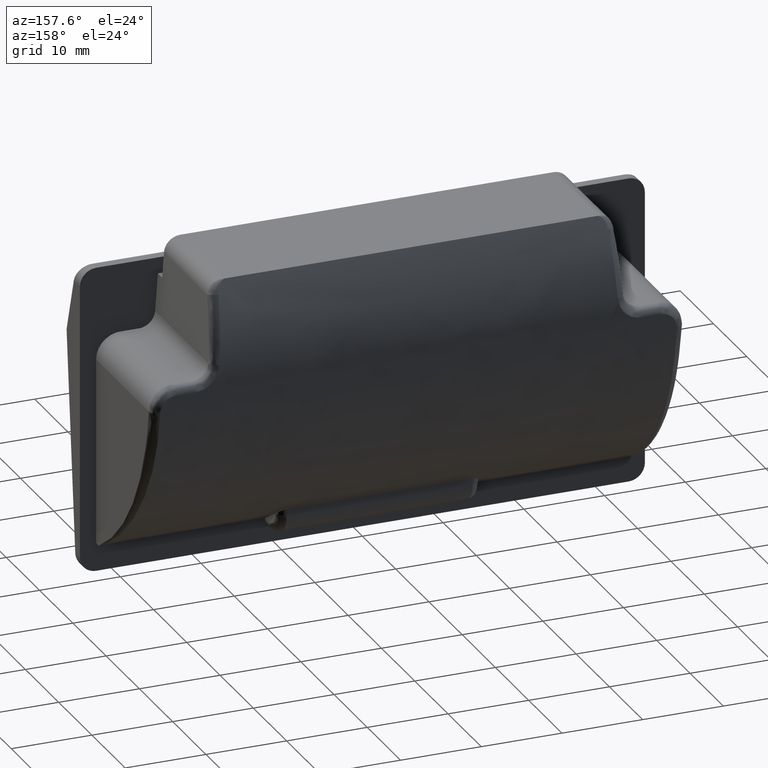
[diagram: clean part render]
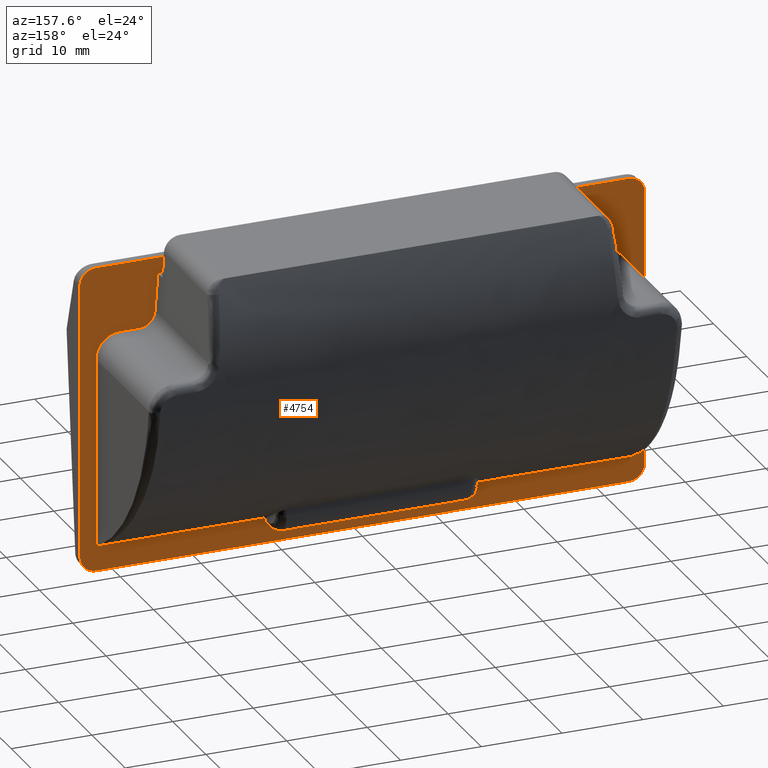
[diagram: same view with one face highlighted and labeled with its STEP entity id]
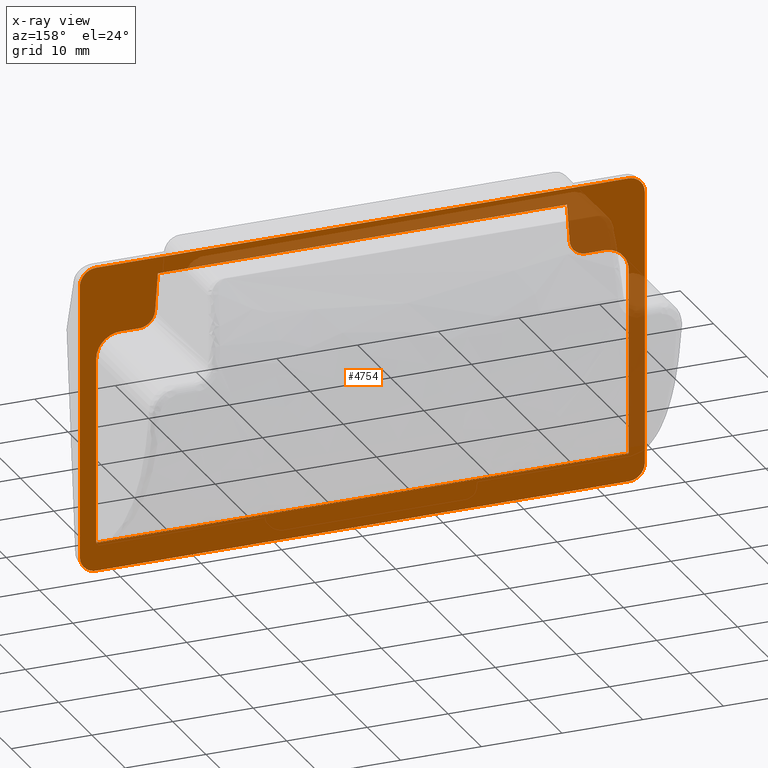
[diagram: x-ray of the same camera — body ghosted, the highlighted face saturated]
A machine part, auxiliary view. The second image highlights one B-rep face of the part: STEP entity #4754.
The next image is the same camera in x-ray: the body ghosted, the highlighted face saturated — about 23% of this face is hidden behind the body in this view.
In plain terms, the highlighted face is a freeform B-spline surface patch.
Its self-contained STEP definition (entity closure, byte-faithful):
#1569=CARTESIAN_POINT('',(33.0,0.0,-19.750000000000000));
#1570=VERTEX_POINT('',#1569);
#1571=CARTESIAN_POINT('',(-33.0,0.0,-19.750000000000000));
#1572=VERTEX_POINT('',#1571);
#1573=CARTESIAN_POINT('',(33.0,0.0,-19.750000000000000));
#1574=CARTESIAN_POINT('',(-33.0,0.0,-19.750000000000000));
#1575=QUASI_UNIFORM_CURVE('',1,(#1573,#1574),.UNSPECIFIED.,.F.,.U.);
#1576=EDGE_CURVE('',#1570,#1572,#1575,.T.);
#4157=CARTESIAN_POINT('',(33.0,0.0,18.250000000000000));
#4158=VERTEX_POINT('',#4157);
#4159=CARTESIAN_POINT('',(35.0,0.0,16.250000000000000));
#4160=VERTEX_POINT('',#4159);
#4161=CARTESIAN_POINT('',(33.0,0.0,18.250000000000000));
#4162=CARTESIAN_POINT('',(34.999999999999993,0.0,18.250000000000011));
#4163=CARTESIAN_POINT('',(35.0,0.0,16.250000000000000));
#4171=(BOUNDED_CURVE()B_SPLINE_CURVE(2,(#4161,#4162,#4163),.UNSPECIFIED.,.F.,.U.)CURVE()GEOMETRIC_REPRESENTATION_ITEM()QUASI_UNIFORM_CURVE()RATIONAL_B_SPLINE_CURVE((1.0,0.707106781186548,1.0))REPRESENTATION_ITEM(''));
#4172=EDGE_CURVE('',#4158,#4160,#4171,.T.);
#4218=CARTESIAN_POINT('',(-35.0,0.0,16.250000000000000));
#4219=VERTEX_POINT('',#4218);
#4220=CARTESIAN_POINT('',(-33.0,0.0,18.250000000000000));
#4221=VERTEX_POINT('',#4220);
#4222=CARTESIAN_POINT('',(-35.0,0.0,16.250000000000000));
#4223=CARTESIAN_POINT('',(-34.999999999999993,0.0,18.250000000000011));
#4224=CARTESIAN_POINT('',(-33.0,0.0,18.250000000000000));
#4232=(BOUNDED_CURVE()B_SPLINE_CURVE(2,(#4222,#4223,#4224),.UNSPECIFIED.,.F.,.U.)CURVE()GEOMETRIC_REPRESENTATION_ITEM()QUASI_UNIFORM_CURVE()RATIONAL_B_SPLINE_CURVE((1.0,0.707106781186548,1.0))REPRESENTATION_ITEM(''));
#4233=EDGE_CURVE('',#4219,#4221,#4232,.T.);
#4280=CARTESIAN_POINT('',(-35.0,0.0,-17.750000000000000));
#4281=VERTEX_POINT('',#4280);
#4287=CARTESIAN_POINT('',(-33.0,0.0,-19.750000000000000));
#4288=CARTESIAN_POINT('',(-34.999999999999993,0.0,-19.749999999999993));
#4289=CARTESIAN_POINT('',(-35.0,0.0,-17.750000000000000));
#4297=(BOUNDED_CURVE()B_SPLINE_CURVE(2,(#4287,#4288,#4289),.UNSPECIFIED.,.F.,.U.)CURVE()GEOMETRIC_REPRESENTATION_ITEM()QUASI_UNIFORM_CURVE()RATIONAL_B_SPLINE_CURVE((1.0,0.707106781186548,1.0))REPRESENTATION_ITEM(''));
#4298=EDGE_CURVE('',#1572,#4281,#4297,.T.);
#4320=CARTESIAN_POINT('',(35.0,0.0,-17.750000000000000));
#4321=VERTEX_POINT('',#4320);
#4322=CARTESIAN_POINT('',(35.0,0.0,-17.750000000000000));
#4323=CARTESIAN_POINT('',(34.999999999999993,0.0,-19.749999999999993));
#4324=CARTESIAN_POINT('',(33.0,0.0,-19.750000000000000));
#4332=(BOUNDED_CURVE()B_SPLINE_CURVE(2,(#4322,#4323,#4324),.UNSPECIFIED.,.F.,.U.)CURVE()GEOMETRIC_REPRESENTATION_ITEM()QUASI_UNIFORM_CURVE()RATIONAL_B_SPLINE_CURVE((1.0,0.707106781186548,1.0))REPRESENTATION_ITEM(''));
#4333=EDGE_CURVE('',#4321,#1570,#4332,.T.);
#4495=CARTESIAN_POINT('',(-35.0,0.0,-17.750000000000000));
#4496=CARTESIAN_POINT('',(-35.0,0.0,16.250000000000000));
#4497=QUASI_UNIFORM_CURVE('',1,(#4495,#4496),.UNSPECIFIED.,.F.,.U.);
#4498=EDGE_CURVE('',#4281,#4219,#4497,.T.);
#4533=CARTESIAN_POINT('',(35.0,0.0,-17.750000000000000));
#4534=CARTESIAN_POINT('',(35.0,0.0,16.250000000000000));
#4535=QUASI_UNIFORM_CURVE('',1,(#4533,#4534),.UNSPECIFIED.,.F.,.U.);
#4536=EDGE_CURVE('',#4321,#4160,#4535,.T.);
#4610=CARTESIAN_POINT('',(33.0,0.0,18.250000000000000));
#4611=CARTESIAN_POINT('',(-33.0,0.0,18.250000000000000));
#4612=QUASI_UNIFORM_CURVE('',1,(#4610,#4611),.UNSPECIFIED.,.F.,.U.);
#4613=EDGE_CURVE('',#4158,#4221,#4612,.T.);
#4621=CARTESIAN_POINT('',(-38.496499864326417,0.0,20.148099926348628));
#4622=CARTESIAN_POINT('',(-38.496499864326417,0.0,-21.648100945588052));
#4623=CARTESIAN_POINT('',(38.496501741872720,0.0,20.148099926348628));
#4624=CARTESIAN_POINT('',(38.496501741872720,0.0,-21.648100945588052));
#4625=B_SPLINE_SURFACE_WITH_KNOTS('',1,1,((#4621,#4623),(#4622,#4624)),.UNSPECIFIED.,.F.,.F.,.U.,(2,2),(2,2),(0.0,41.796200871936684),(0.0,76.993001606199130),.UNSPECIFIED.);
#4626=ORIENTED_EDGE('',*,*,#4536,.F.);
#4627=ORIENTED_EDGE('',*,*,#4333,.T.);
#4628=ORIENTED_EDGE('',*,*,#1576,.T.);
#4629=ORIENTED_EDGE('',*,*,#4298,.T.);
#4630=ORIENTED_EDGE('',*,*,#4498,.T.);
#4631=ORIENTED_EDGE('',*,*,#4233,.T.);
#4632=ORIENTED_EDGE('',*,*,#4613,.F.);
#4633=ORIENTED_EDGE('',*,*,#4172,.T.);
#4634=EDGE_LOOP('',(#4626,#4627,#4628,#4629,#4630,#4631,#4632,#4633));
#4635=FACE_OUTER_BOUND('',#4634,.T.);
#4636=CARTESIAN_POINT('',(25.345762591833051,0.0,16.250000000000000));
#4637=VERTEX_POINT('',#4636);
#4638=CARTESIAN_POINT('',(-25.345761591833000,0.0,16.250000000000000));
#4639=VERTEX_POINT('',#4638);
#4640=CARTESIAN_POINT('',(25.345762591833051,0.0,16.250000000000000));
#4641=CARTESIAN_POINT('',(-25.345761591833000,0.0,16.250000000000000));
#4642=QUASI_UNIFORM_CURVE('',1,(#4640,#4641),.UNSPECIFIED.,.F.,.U.);
#4643=EDGE_CURVE('',#4637,#4639,#4642,.T.);
#4644=ORIENTED_EDGE('',*,*,#4643,.T.);
#4645=CARTESIAN_POINT('',(-25.681621359056098,0.0,11.605742248726340));
#4646=VERTEX_POINT('',#4645);
#4647=CARTESIAN_POINT('',(-25.681621359056098,0.0,11.605742248726340));
#4648=CARTESIAN_POINT('',(-25.345761591833000,0.0,16.250000000000000));
#4649=QUASI_UNIFORM_CURVE('',1,(#4647,#4648),.UNSPECIFIED.,.F.,.U.);
#4650=EDGE_CURVE('',#4646,#4639,#4649,.T.);
#4651=ORIENTED_EDGE('',*,*,#4650,.F.);
#4652=CARTESIAN_POINT('',(-27.676411999999999,0.0,9.750000000000000));
#4653=VERTEX_POINT('',#4652);
#4654=CARTESIAN_POINT('',(-27.676411999999999,0.0,9.750000000000000));
#4655=CARTESIAN_POINT('',(-25.815823514535470,0.0,9.750000000000002));
#4656=CARTESIAN_POINT('',(-25.681621359056081,0.0,11.605742248726340));
#4664=(BOUNDED_CURVE()B_SPLINE_CURVE(2,(#4654,#4655,#4656),.UNSPECIFIED.,.F.,.U.)CURVE()GEOMETRIC_REPRESENTATION_ITEM()QUASI_UNIFORM_CURVE()RATIONAL_B_SPLINE_CURVE((1.0,0.732164215062725,1.0))REPRESENTATION_ITEM(''));
#4665=EDGE_CURVE('',#4653,#4646,#4664,.T.);
#4666=ORIENTED_EDGE('',*,*,#4665,.F.);
#4667=CARTESIAN_POINT('',(-30.0,0.0,9.750000000000000));
#4668=VERTEX_POINT('',#4667);
#4669=CARTESIAN_POINT('',(-30.0,0.0,9.750000000000000));
#4670=CARTESIAN_POINT('',(-27.676411999999999,0.0,9.750000000000000));
#4671=QUASI_UNIFORM_CURVE('',1,(#4669,#4670),.UNSPECIFIED.,.F.,.U.);
#4672=EDGE_CURVE('',#4668,#4653,#4671,.T.);
#4673=ORIENTED_EDGE('',*,*,#4672,.F.);
#4674=CARTESIAN_POINT('',(-33.0,0.0,6.749999999999920));
#4675=VERTEX_POINT('',#4674);
#4676=CARTESIAN_POINT('',(-30.0,0.0,9.749999999999920));
#4677=CARTESIAN_POINT('',(-33.0,0.0,9.749999999999920));
#4678=CARTESIAN_POINT('',(-33.0,0.0,6.749999999999920));
#4686=(BOUNDED_CURVE()B_SPLINE_CURVE(2,(#4676,#4677,#4678),.UNSPECIFIED.,.F.,.U.)CURVE()GEOMETRIC_REPRESENTATION_ITEM()QUASI_UNIFORM_CURVE()RATIONAL_B_SPLINE_CURVE((1.0,0.707106781186548,1.0))REPRESENTATION_ITEM(''));
#4687=EDGE_CURVE('',#4668,#4675,#4686,.T.);
#4688=ORIENTED_EDGE('',*,*,#4687,.T.);
#4689=CARTESIAN_POINT('',(-33.0,0.0,-16.250000000000000));
#4690=VERTEX_POINT('',#4689);
#4691=CARTESIAN_POINT('',(-33.0,0.0,-16.250000000000000));
#4692=CARTESIAN_POINT('',(-33.0,0.0,6.749999999999920));
#4693=QUASI_UNIFORM_CURVE('',1,(#4691,#4692),.UNSPECIFIED.,.F.,.U.);
#4694=EDGE_CURVE('',#4690,#4675,#4693,.T.);
#4695=ORIENTED_EDGE('',*,*,#4694,.F.);
#4696=CARTESIAN_POINT('',(33.0,0.0,-16.250000000000000));
#4697=VERTEX_POINT('',#4696);
#4698=CARTESIAN_POINT('',(33.0,0.0,-16.250000000000000));
#4699=CARTESIAN_POINT('',(-33.0,0.0,-16.250000000000000));
#4700=QUASI_UNIFORM_CURVE('',1,(#4698,#4699),.UNSPECIFIED.,.F.,.U.);
#4701=EDGE_CURVE('',#4697,#4690,#4700,.T.);
#4702=ORIENTED_EDGE('',*,*,#4701,.F.);
#4703=CARTESIAN_POINT('',(33.0,0.0,6.749999999999920));
#4704=VERTEX_POINT('',#4703);
#4705=CARTESIAN_POINT('',(33.0,0.0,6.749999999999920));
#4706=CARTESIAN_POINT('',(33.0,0.0,-16.250000000000000));
#4707=QUASI_UNIFORM_CURVE('',1,(#4705,#4706),.UNSPECIFIED.,.F.,.U.);
#4708=EDGE_CURVE('',#4704,#4697,#4707,.T.);
#4709=ORIENTED_EDGE('',*,*,#4708,.F.);
#4710=CARTESIAN_POINT('',(30.0,0.0,9.750000000000000));
#4711=VERTEX_POINT('',#4710);
#4712=CARTESIAN_POINT('',(33.0,0.0,6.749999999999920));
#4713=CARTESIAN_POINT('',(33.0,0.0,9.749999999999920));
#4714=CARTESIAN_POINT('',(30.0,0.0,9.749999999999920));
#4722=(BOUNDED_CURVE()B_SPLINE_CURVE(2,(#4712,#4713,#4714),.UNSPECIFIED.,.F.,.U.)CURVE()GEOMETRIC_REPRESENTATION_ITEM()QUASI_UNIFORM_CURVE()RATIONAL_B_SPLINE_CURVE((1.0,0.707106781186548,1.0))REPRESENTATION_ITEM(''));
#4723=EDGE_CURVE('',#4704,#4711,#4722,.T.);
#4724=ORIENTED_EDGE('',*,*,#4723,.T.);
#4725=CARTESIAN_POINT('',(27.676413000000000,0.0,9.750000000000000));
#4726=VERTEX_POINT('',#4725);
#4727=CARTESIAN_POINT('',(27.676413000000000,0.0,9.750000000000000));
#4728=CARTESIAN_POINT('',(30.0,0.0,9.750000000000000));
#4729=QUASI_UNIFORM_CURVE('',1,(#4727,#4728),.UNSPECIFIED.,.F.,.U.);
#4730=EDGE_CURVE('',#4726,#4711,#4729,.T.);
#4731=ORIENTED_EDGE('',*,*,#4730,.F.);
#4732=CARTESIAN_POINT('',(25.681622355040901,0.0,11.605742304248521));
#4733=VERTEX_POINT('',#4732);
#4734=CARTESIAN_POINT('',(25.681622355040869,0.0,11.605742304248521));
#4735=CARTESIAN_POINT('',(25.815824462613374,0.0,9.750000000000000));
#4736=CARTESIAN_POINT('',(27.676413000000000,0.0,9.750000000000000));
#4744=(BOUNDED_CURVE()B_SPLINE_CURVE(2,(#4734,#4735,#4736),.UNSPECIFIED.,.F.,.U.)CURVE()GEOMETRIC_REPRESENTATION_ITEM()QUASI_UNIFORM_CURVE()RATIONAL_B_SPLINE_CURVE((1.0,0.732164205583605,1.0))REPRESENTATION_ITEM(''));
#4745=EDGE_CURVE('',#4733,#4726,#4744,.T.);
#4746=ORIENTED_EDGE('',*,*,#4745,.F.);
#4747=CARTESIAN_POINT('',(25.345762591833051,0.0,16.250000000000000));
#4748=CARTESIAN_POINT('',(25.681622355040901,0.0,11.605742304248521));
#4749=QUASI_UNIFORM_CURVE('',1,(#4747,#4748),.UNSPECIFIED.,.F.,.U.);
#4750=EDGE_CURVE('',#4637,#4733,#4749,.T.);
#4751=ORIENTED_EDGE('',*,*,#4750,.F.);
#4752=EDGE_LOOP('',(#4644,#4651,#4666,#4673,#4688,#4695,#4702,#4709,#4724,#4731,#4746,#4751));
#4753=FACE_BOUND('',#4752,.T.);
#4754=ADVANCED_FACE('',(#4635,#4753),#4625,.F.);